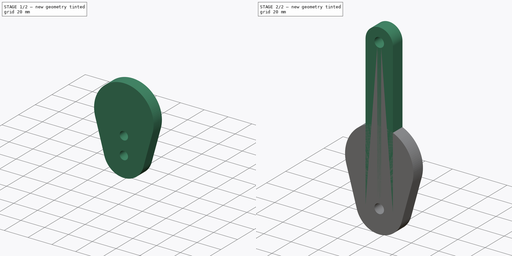
[diagram: build sequence overview — one tinted view per stage of 2, left to right]
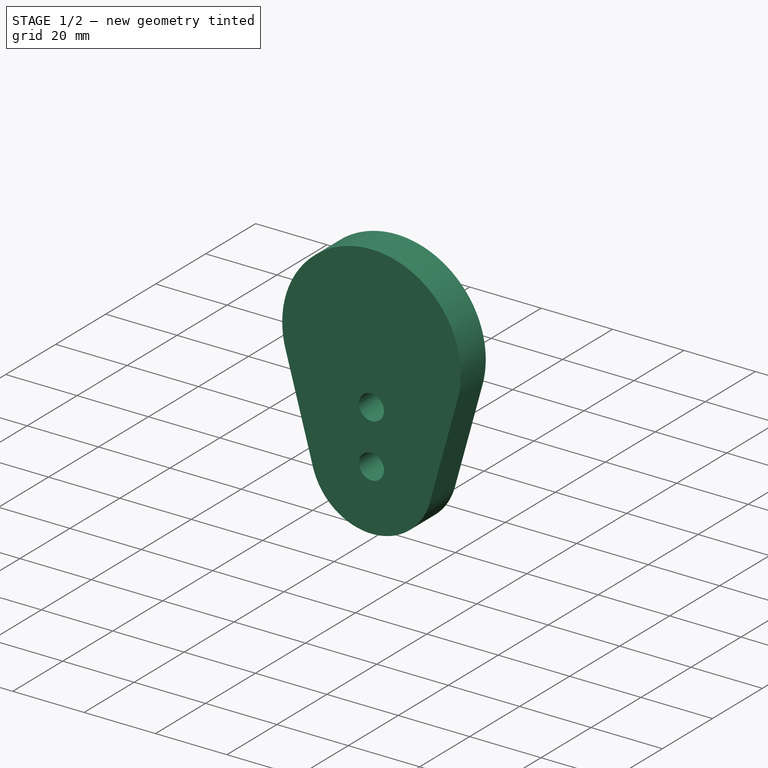
[diagram: stage 1 of 2 — iso view after this stage's code; geometry added in this stage tinted green]
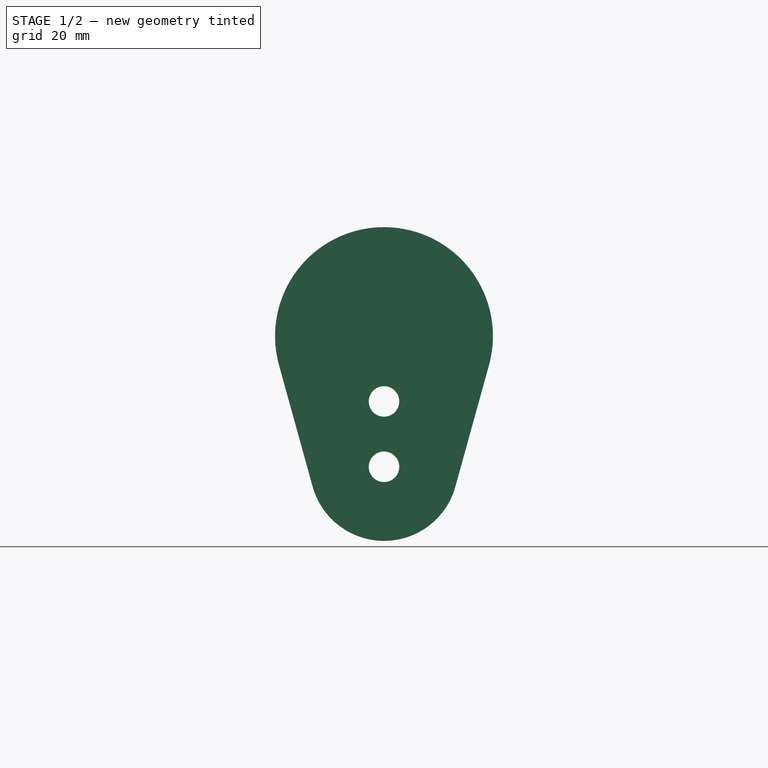
[diagram: stage 1 of 2 — front view after this stage's code; geometry added in this stage tinted green]
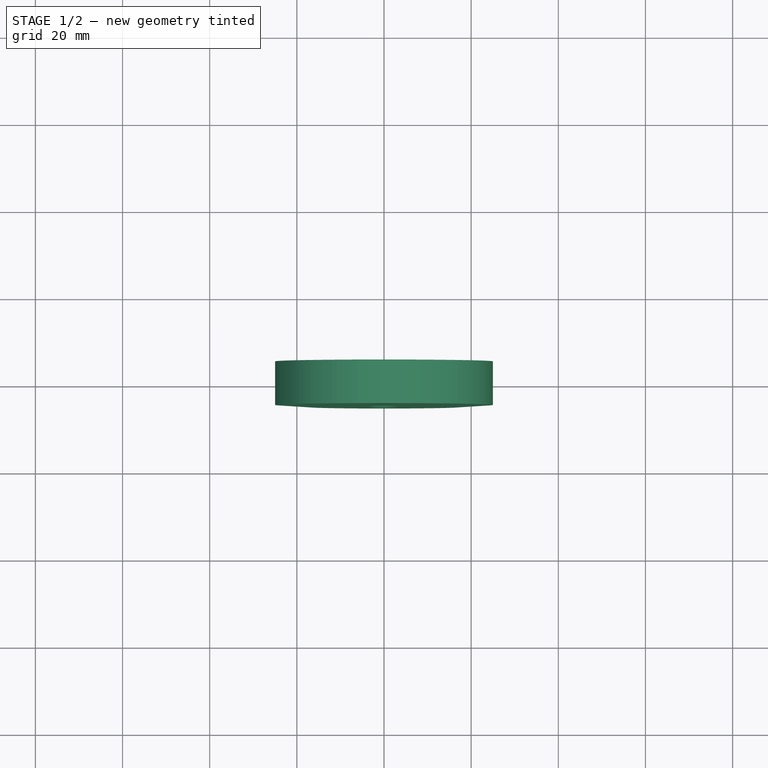
[diagram: stage 1 of 2 — top view after this stage's code; geometry added in this stage tinted green]
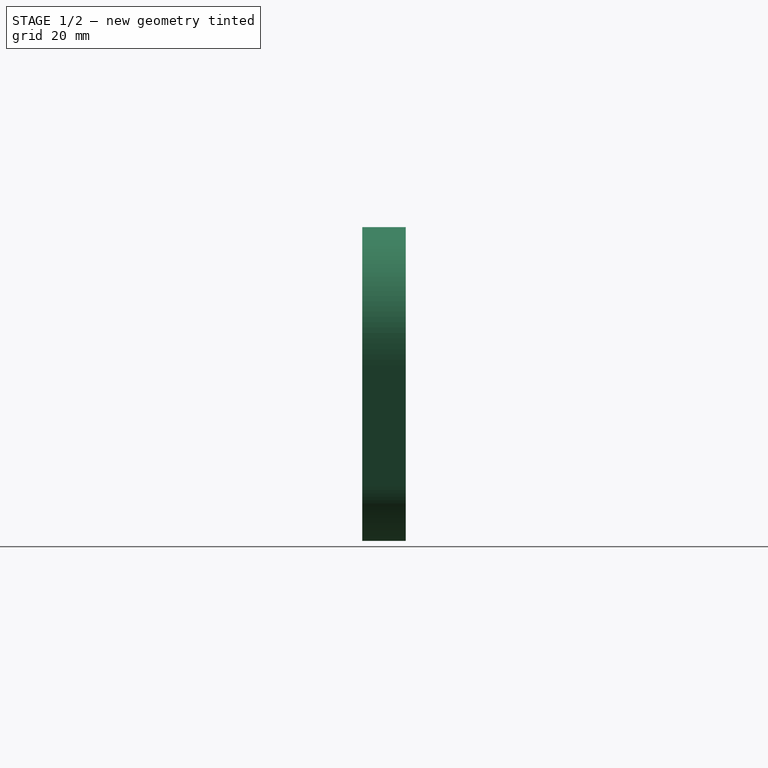
[diagram: stage 1 of 2 — right view after this stage's code; geometry added in this stage tinted green]
FCSTD DOCUMENT  (FreeCAD 1.2R20260127 (Git shallow))
Label: 003_CounterWeightBody
License: All rights reserved
LicenseURL: http://en.wikipedia.org/wiki/All_rights_reserved
objects: Sketcher::SketchObject×3, App::Point×2, PartDesign::SubShapeBinder×2, PartDesign::Pad×2, PartDesign::Body×2
note: 16 computed .brp shape members not serialized (recipe doc carries the construction recipe); baked Part::Feature solids carry a one-line shape summary decoded from their .brp

FEATURE [PartDesign::Body] Body  label="LinkBody"
  AllowCompound = true
  Group = -> [Binder,Sketch001,Pad]
  Origin = -> Origin
  Tip = -> Pad
FEATURE [App::Point] Origin003
  Role = Origin
FEATURE [PartDesign::SubShapeBinder] Binder001
  BindCopyOnChange = 0
  BindMode = 0
  ClaimChildren = false
  Context = -> Body001 [Binder001.]
  Fuse = false
  MakeFace = false
  OffsetFill = false
  OffsetIntersection = false
  OffsetJoinType = 0
  OffsetOpenResult = false
  PartialLoad = false
  Refine = true
  Relative = true
  Support = -> [Sketch]
  _Version = 2
FEATURE [Sketcher::SketchObject] Sketch002
  ArcFitTolerance = 1e-06
  AttachmentSupport = -> [Origin002]
  ExternalGeometry = -> [Binder001]
  ExternalTypes = [0,0,0,0,0,0]
  FullyConstrained = true
  MakeInternals = false
  MapMode = 5
  Placement = pos=(0,0,0) rot=(1,0,0;1.5708rad)
FEATURE [PartDesign::Pad] Pad001
  Direction = (0,-1,0)
  Length = 10
  Length2 = 10
  Profile = -> Sketch002
  ReferenceAxis = -> Sketch002 [N_Axis]
  Refine = true
  SideType = 2
  Suppressed = false
  Type = 0
  Type2 = 0
FEATURE [PartDesign::Body] Body001  label="CounterWeightBody"
  AllowCompound = true
  Group = -> [Binder001,Sketch002,Pad001]
  Origin = -> Origin002
  Tip = -> Pad001
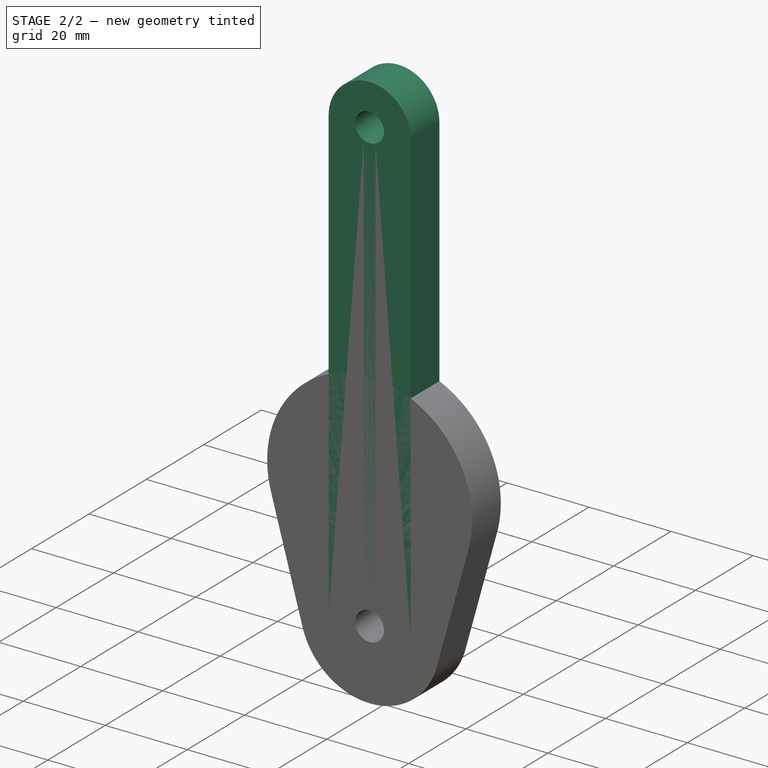
[diagram: stage 2 of 2 — iso view after this stage's code; geometry added in this stage tinted green]
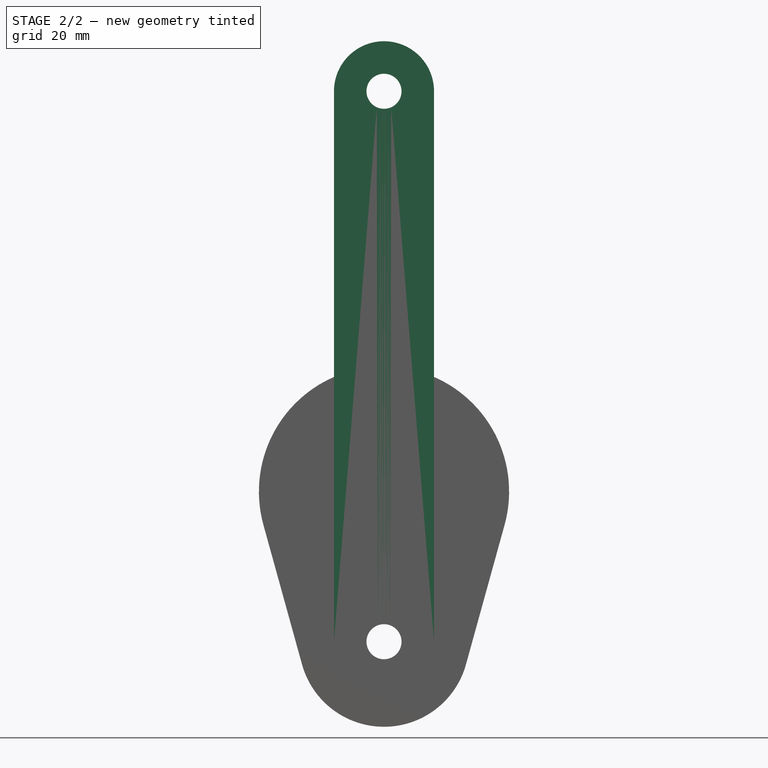
[diagram: stage 2 of 2 — front view after this stage's code; geometry added in this stage tinted green]
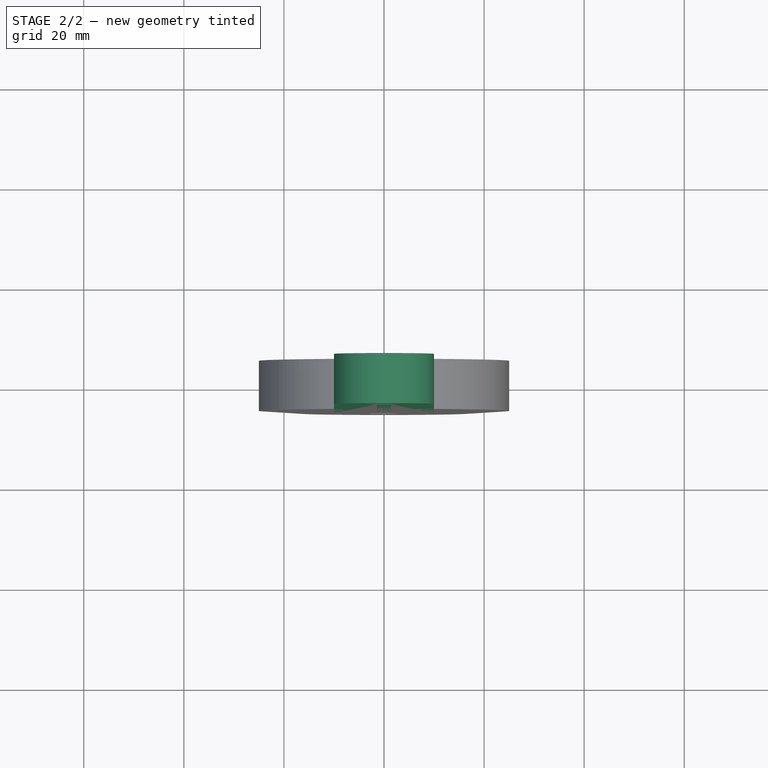
[diagram: stage 2 of 2 — top view after this stage's code; geometry added in this stage tinted green]
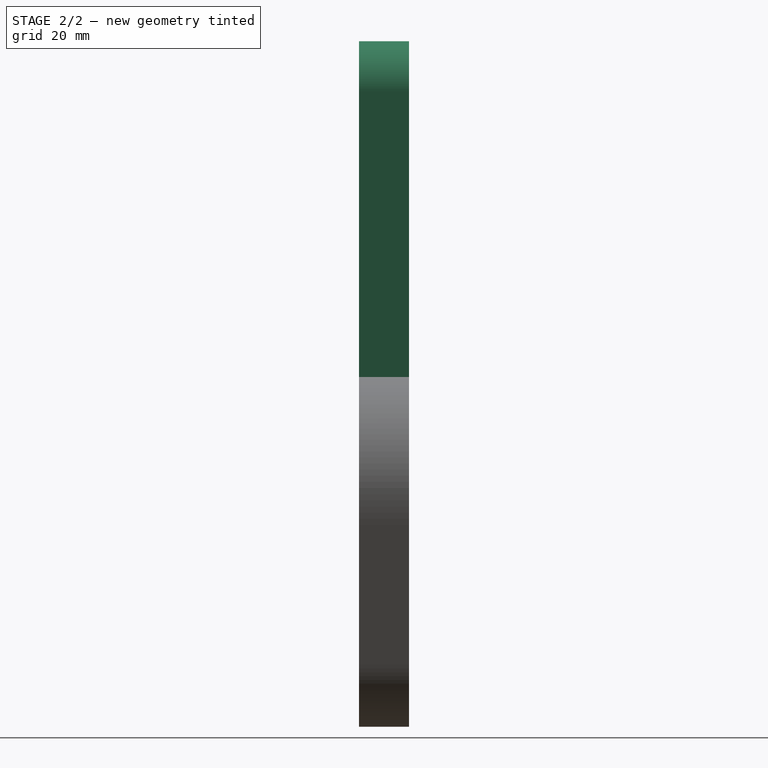
[diagram: stage 2 of 2 — right view after this stage's code; geometry added in this stage tinted green]
FEATURE [Sketcher::SketchObject] Sketch  label="Mastersketch"
  ArcFitTolerance = 1e-06
  AttachmentSupport = -> [XZ_Plane]
  ExternalTypes = [0]
  FullyConstrained = true
  MakeInternals = false
  MapMode = 5
  Placement = pos=(0,0,0) rot=(1,0,0;1.5708rad)
  sketch-geometry (19):
    g0: ArcOfCircle CenterX=2e-16 CenterY=55 CenterZ=0 NormalX=0 NormalY=0 NormalZ=1 AngleXU=0 Radius=10 StartAngle=4e-16 EndAngle=3.14159
    g1: ArcOfCircle CenterX=-2e-16 CenterY=-55 CenterZ=0 NormalX=0 NormalY=0 NormalZ=1 AngleXU=0 Radius=10 StartAngle=3.14159 EndAngle=6.28319
    g2: LineSegment StartX=10 StartY=55 StartZ=0 EndX=10 EndY=-55 EndZ=0
    g3: LineSegment StartX=-10 StartY=55 StartZ=0 EndX=-10 EndY=-55 EndZ=0
    g4: ArcOfCircle CenterX=0 CenterY=-25 CenterZ=0 NormalX=0 NormalY=0 NormalZ=1 AngleXU=0 Radius=25 StartAngle=6.01325 EndAngle=9.69471
    g5: ArcOfCircle CenterX=-2e-16 CenterY=-55 CenterZ=0 NormalX=0 NormalY=0 NormalZ=1 AngleXU=0 Radius=17 StartAngle=3.41153 EndAngle=6.01325
    g6: LineSegment StartX=24.0947 StartY=-31.6667 StartZ=0 EndX=16.3844 EndY=-59.5333 EndZ=0
    g7: LineSegment StartX=-16.3844 StartY=-59.5333 StartZ=0 EndX=-24.0947 EndY=-31.6667 EndZ=0
    g8: Circle CenterX=2e-16 CenterY=55 CenterZ=0 NormalX=0 NormalY=0 NormalZ=1 AngleXU=0 Radius=3.5
    g9: Circle CenterX=-2e-16 CenterY=-55 CenterZ=0 NormalX=0 NormalY=0 NormalZ=1 AngleXU=0 Radius=3.5
    g10: LineSegment StartX=-30 StartY=80 StartZ=0 EndX=-30 EndY=20 EndZ=0
    g11: LineSegment StartX=-30 StartY=20 StartZ=0 EndX=30 EndY=20 EndZ=0
    g12: LineSegment StartX=30 StartY=20 StartZ=0 EndX=30 EndY=80 EndZ=0
    g13: LineSegment StartX=30 StartY=80 StartZ=0 EndX=-30 EndY=80 EndZ=0
    g14: ArcOfCircle CenterX=0 CenterY=-40 CenterZ=0 NormalX=0 NormalY=0 NormalZ=1 AngleXU=0 Radius=10 StartAngle=3e-16 EndAngle=3.14159
    g15: LineSegment StartX=10 StartY=-40 StartZ=0 EndX=10 EndY=-100 EndZ=0
    g16: LineSegment StartX=-10 StartY=-40 StartZ=0 EndX=-10 EndY=-100 EndZ=0
    g17: LineSegment StartX=-10 StartY=-100 StartZ=0 EndX=10 EndY=-100 EndZ=0
    g18: Circle CenterX=0 CenterY=-40 CenterZ=0 NormalX=0 NormalY=0 NormalZ=1 AngleXU=0 Radius=3.5
  constraints (46):
    c: Tangent(g0,g2) = 1.5708
    c: Tangent(g0,g3) = -1.5708
    c: Tangent(g1,g2) = 1.5708
    c: Tangent(g1,g3) = -1.5708
    c: Equal(g0,g1)
    c: Vertical(g2)
    c: Radius(g0) = 10
    c: DistanceY(g1,g0) = 110
    c: Symmetric(g0,g1,g-1)
    c: PointOnObject(g4,g-2)
    c: Coincident(g1,g5)
    c: Radius(g4) = 25
    c: Radius(g5) = 17
    c: Tangent(g7,g4) = 1.5708
    c: Tangent(g7,g5) = 1.5708
    c: Tangent(g6,g5) = 1.5708
    c: Tangent(g6,g4) = 1.5708
    c: DistanceY(g1,g4) = 30
    c: Coincident(g8,g0)
    c: Coincident(g9,g1)
    c: Diameter(g8) = 7
    c: Coincident(g10,g11)
    c: Coincident(g11,g12)
    c: Coincident(g12,g13)
    c: Coincident(g13,g10)
    c: Vertical(g10)
    c: Vertical(g12)
    c: Horizontal(g11)
    c: DistanceX(g13,g13) = 60
    c: Equal(g13,g10)
    c: Symmetric(g12,g10,g-2)
    c: DistanceY(g-1,g10) = 20
    c: Tangent(g14,g15) = 1.5708
    c: Tangent(g14,g16) = -1.5708
    c: Vertical(g15)
    c: Coincident(g17,g16)
    c: Coincident(g17,g15)
    c: Horizontal(g17)
    c: Equal(g14,g1)
    c: Vertical(g16)
    c: DistanceY(g16,g14) = 60
    c: PointOnObject(g14,g-2)
    c: DistanceY(g14,g4) = 15
    c: Coincident(g18,g14)
    c: Equal(g18,g9)
    c: Equal(g18,g8)
FEATURE [App::Point] Origin001
  Role = Origin
FEATURE [PartDesign::SubShapeBinder] Binder
  BindCopyOnChange = 0
  BindMode = 0
  ClaimChildren = false
  Context = -> Body [Binder.]
  Fuse = false
  MakeFace = false
  OffsetFill = false
  OffsetIntersection = false
  OffsetJoinType = 0
  OffsetOpenResult = false
  PartialLoad = false
  Refine = true
  Relative = true
  Support = -> [Sketch]
  _Version = 2
FEATURE [Sketcher::SketchObject] Sketch001
  ArcFitTolerance = 1e-06
  AttachmentSupport = -> [Origin]
  ExternalGeometry = -> [Binder]
  ExternalTypes = [0,0,0,0,0,0]
  FullyConstrained = true
  MakeInternals = false
  MapMode = 5
  Placement = pos=(0,0,0) rot=(1,0,0;1.5708rad)
FEATURE [PartDesign::Pad] Pad
  Direction = (0,-1,2e-16)
  Length = 10
  Length2 = 10
  Profile = -> Sketch001
  ReferenceAxis = -> Sketch001 [N_Axis]
  Refine = true
  SideType = 2
  Suppressed = false
  Type = 0
  Type2 = 0
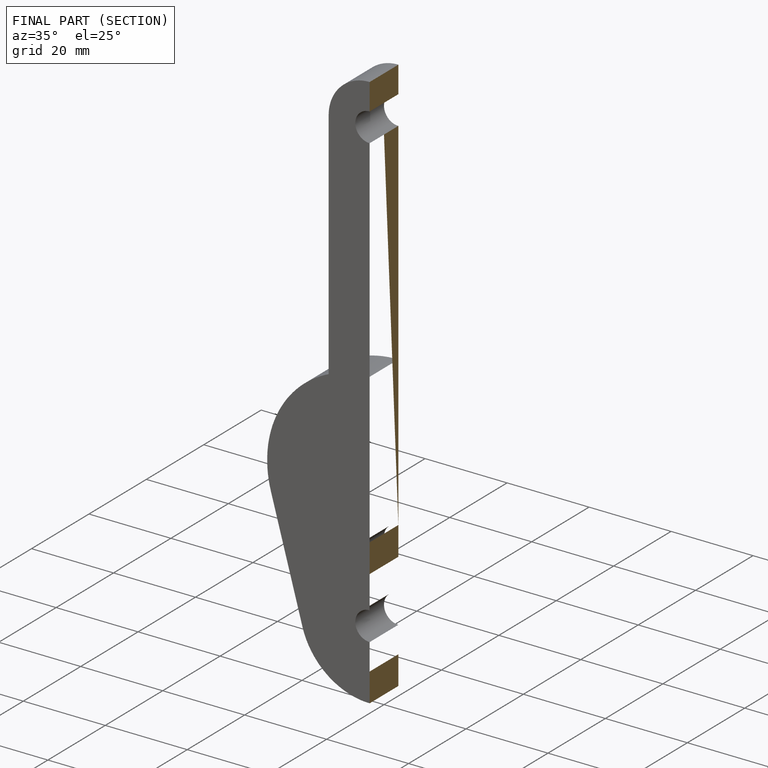
[diagram: finished part — half-section view (interior)]
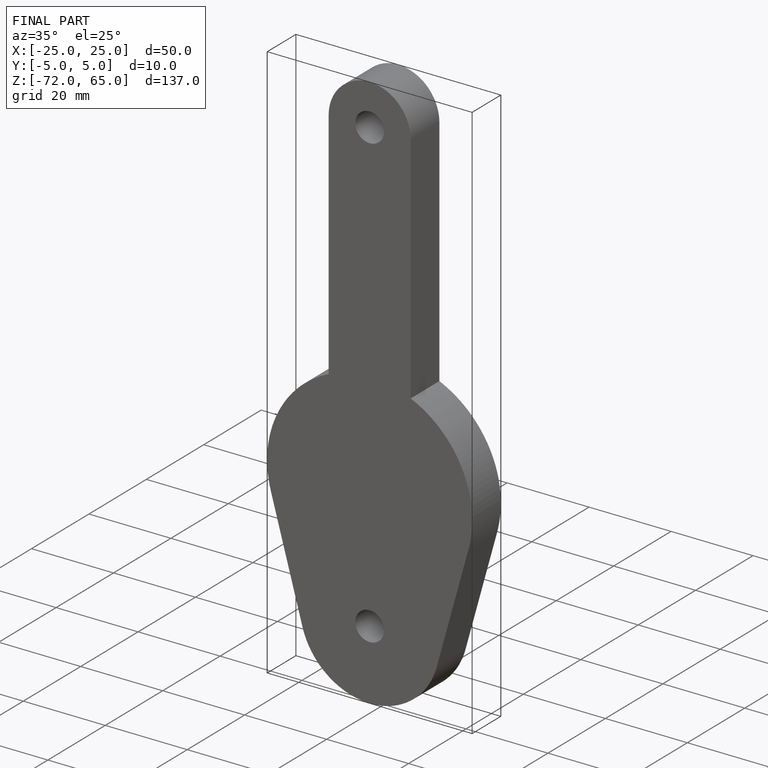
[diagram: finished part — iso view with bounding-box wireframe]
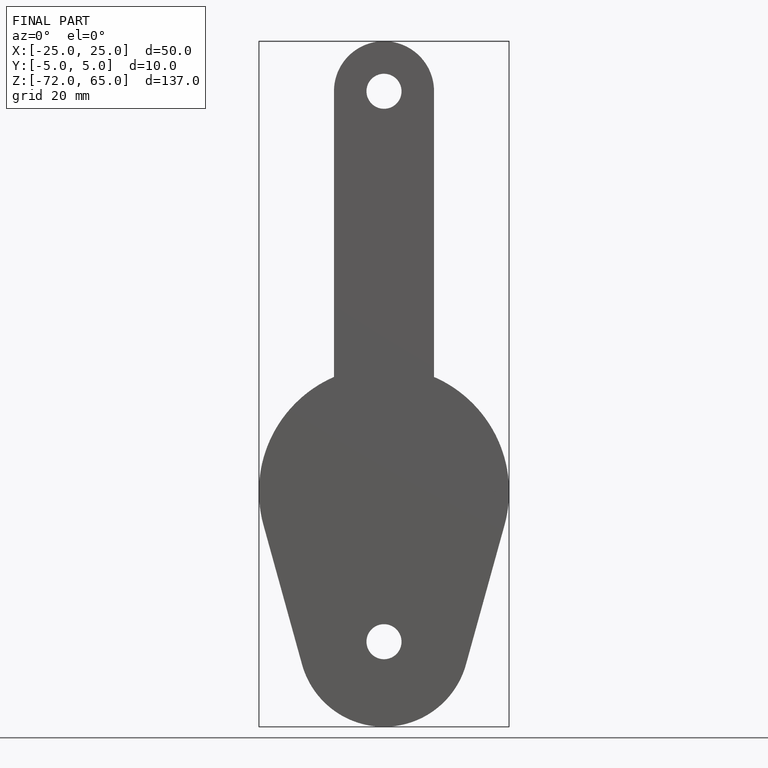
[diagram: finished part — front view with bounding-box wireframe]
